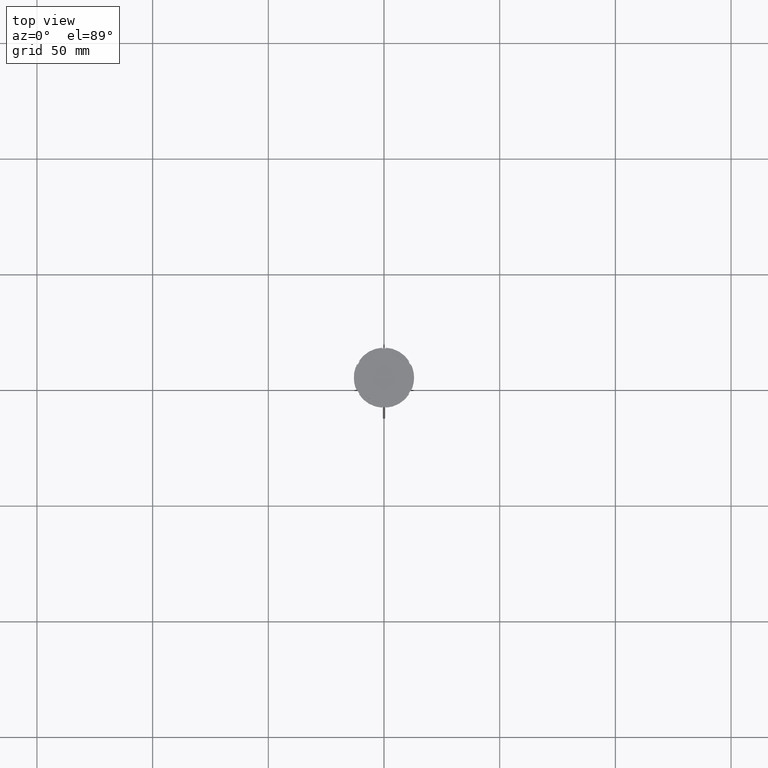
[diagram: clean part render]
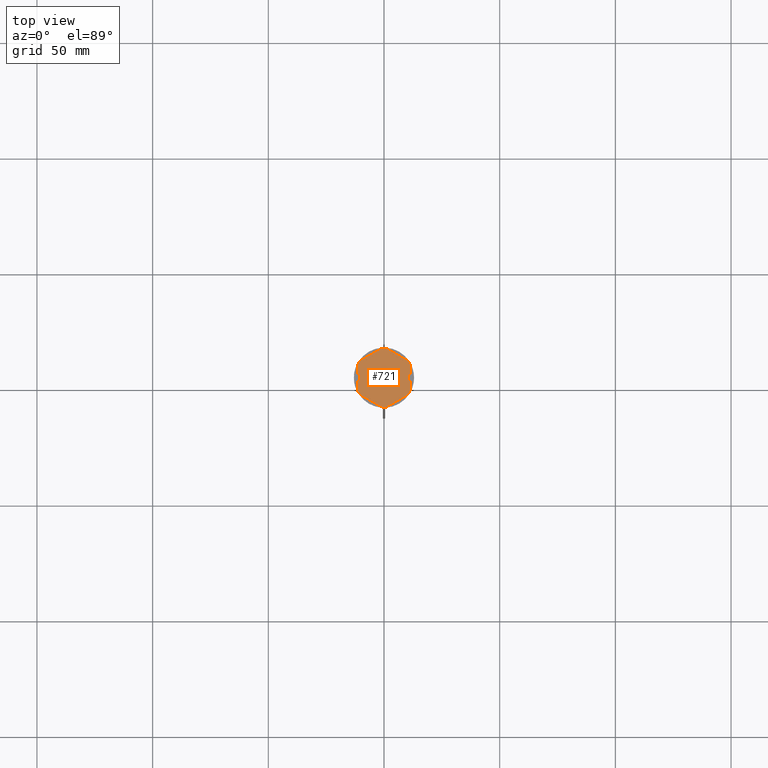
[diagram: same view with one face highlighted and labeled with its STEP entity id]
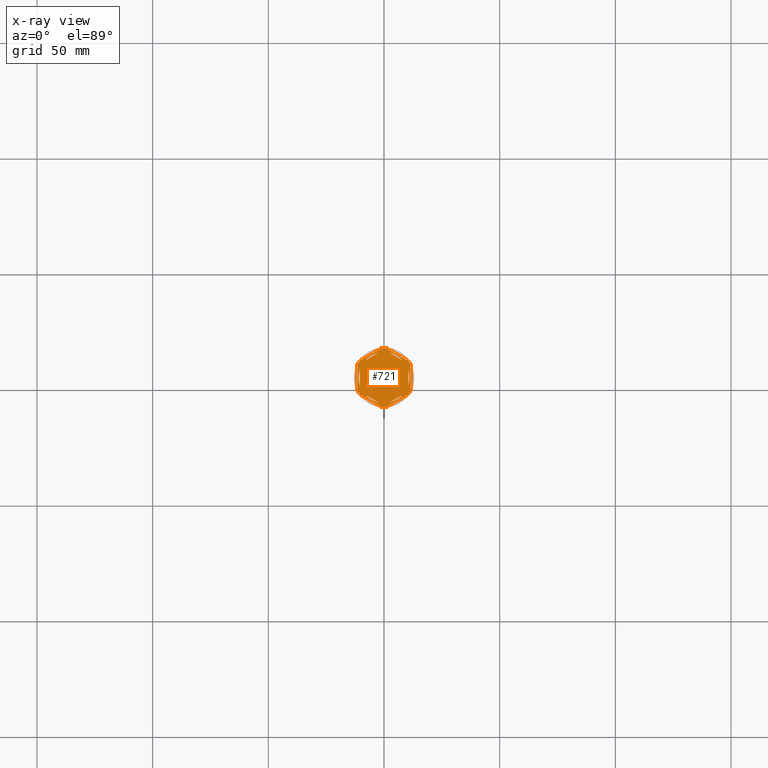
[diagram: x-ray of the same camera — body ghosted, the highlighted face saturated]
A machine part, top view. The second image highlights one B-rep face of the part: STEP entity #721.
The next image is the same camera in x-ray: the body ghosted, the highlighted face saturated — about 0% of this face is hidden behind the body in this view.
In plain terms, the highlighted planar face has unit normal (0, 0, 1).
Its self-contained STEP definition (entity closure, byte-faithful):
#7 = CIRCLE ( 'NONE', #742, 12.69999999999999929 ) ;
#27 = ORIENTED_EDGE ( 'NONE', *, *, #1596, .F. ) ;
#31 = ORIENTED_EDGE ( 'NONE', *, *, #651, .F. ) ;
#34 = CARTESIAN_POINT ( 'NONE',  ( 0.000000000000000000, 0.000000000000000000, -1.000000000000000000 ) ) ;
#47 = AXIS2_PLACEMENT_3D ( 'NONE', #2564, #635, #2760 ) ;
#56 = CARTESIAN_POINT ( 'NONE',  ( -10.41690475583121334, -7.264853426459548125, -1.000000000000000000 ) ) ;
#78 = DIRECTION ( 'NONE',  ( -0.000000000000000000, -0.000000000000000000, -1.000000000000000000 ) ) ;
#80 = ORIENTED_EDGE ( 'NONE', *, *, #1705, .F. ) ;
#104 = EDGE_CURVE ( 'NONE', #1199, #2097, #2704, .T. ) ;
#105 = LINE ( 'NONE', #2512, #202 ) ;
#110 = LINE ( 'NONE', #769, #2765 ) ;
#123 = FACE_BOUND ( 'NONE', #1287, .T. ) ;
#144 = CARTESIAN_POINT ( 'NONE',  ( -10.41690475583121689, 7.264853426459546348, -1.000000000000000000 ) ) ;
#153 = CARTESIAN_POINT ( 'NONE',  ( 0.000000000000000000, 0.000000000000000000, -1.000000000000000000 ) ) ;
#154 = CIRCLE ( 'NONE', #657, 12.69999999999999929 ) ;
#181 = DIRECTION ( 'NONE',  ( 1.000000000000000000, 0.000000000000000000, 0.000000000000000000 ) ) ;
#187 = CARTESIAN_POINT ( 'NONE',  ( -10.49999999999999822, 3.278719262151000624, -1.000000000000000888 ) ) ;
#202 = VECTOR ( 'NONE', #337, 1000.000000000000227 ) ;
#242 = DIRECTION ( 'NONE',  ( 1.000000000000000000, 0.000000000000000000, 0.000000000000000000 ) ) ;
#244 = LINE ( 'NONE', #2610, #415 ) ;
#251 = EDGE_CURVE ( 'NONE', #1046, #1315, #1626, .T. ) ;
#276 = VERTEX_POINT ( 'NONE', #594 ) ;
#287 = EDGE_LOOP ( 'NONE', ( #1898, #2158 ) ) ;
#301 = DIRECTION ( 'NONE',  ( 1.000000000000000000, 0.000000000000000000, 0.000000000000000000 ) ) ;
#309 = DIRECTION ( 'NONE',  ( -0.8660254037844384856, 0.5000000000000002220, 0.000000000000000000 ) ) ;
#310 = FACE_BOUND ( 'NONE', #1616, .T. ) ;
#337 = DIRECTION ( 'NONE',  ( 0.8660254037844387076, -0.4999999999999997780, 0.000000000000000000 ) ) ;
#349 = ORIENTED_EDGE ( 'NONE', *, *, #1049, .T. ) ;
#353 = LINE ( 'NONE', #2738, #1999 ) ;
#364 = ORIENTED_EDGE ( 'NONE', *, *, #1580, .F. ) ;
#368 = CARTESIAN_POINT ( 'NONE',  ( 0.000000000000000000, 0.000000000000000000, -1.000000000000000000 ) ) ;
#386 = VERTEX_POINT ( 'NONE', #1054 ) ;
#411 = DIRECTION ( 'NONE',  ( 0.8660254037844385966, 0.4999999999999999445, 0.000000000000000000 ) ) ;
#415 = VECTOR ( 'NONE', #685, 1000.000000000000114 ) ;
#435 = EDGE_LOOP ( 'NONE', ( #814, #1905 ) ) ;
#455 = EDGE_CURVE ( 'NONE', #2097, #1199, #1723, .T. ) ;
#512 = FACE_BOUND ( 'NONE', #2142, .T. ) ;
#534 = EDGE_CURVE ( 'NONE', #562, #386, #2537, .T. ) ;
#562 = VERTEX_POINT ( 'NONE', #1330 ) ;
#563 = VERTEX_POINT ( 'NONE', #56 ) ;
#589 = VERTEX_POINT ( 'NONE', #2415 ) ;
#594 = CARTESIAN_POINT ( 'NONE',  ( -1.083095244168783333, 12.65373086058254160, -1.000000000000000000 ) ) ;
#620 = CARTESIAN_POINT ( 'NONE',  ( 10.49999999999999467, -3.278719262151014835, -1.000000000000000888 ) ) ;
#634 = DIRECTION ( 'NONE',  ( -0.8660254037844387076, -0.4999999999999999445, 0.000000000000000000 ) ) ;
#635 = DIRECTION ( 'NONE',  ( -0.000000000000000000, -0.000000000000000000, -1.000000000000000000 ) ) ;
#639 = ORIENTED_EDGE ( 'NONE', *, *, #1148, .F. ) ;
#650 = AXIS2_PLACEMENT_3D ( 'NONE', #368, #803, #1228 ) ;
#651 = EDGE_CURVE ( 'NONE', #691, #791, #1310, .T. ) ;
#657 = AXIS2_PLACEMENT_3D ( 'NONE', #153, #1021, #2286 ) ;
#685 = DIRECTION ( 'NONE',  ( -0.8660254037844385966, -0.5000000000000001110, 0.000000000000000000 ) ) ;
#687 = EDGE_CURVE ( 'NONE', #276, #1965, #244, .T. ) ;
#691 = VERTEX_POINT ( 'NONE', #1768 ) ;
#695 = CIRCLE ( 'NONE', #965, 12.69999999999999929 ) ;
#696 = CARTESIAN_POINT ( 'NONE',  ( -1.734723475976807094E-15, 12.12435565298214080, -1.000000000000000888 ) ) ;
#699 = DIRECTION ( 'NONE',  ( 1.000000000000000000, 0.000000000000000000, 0.000000000000000000 ) ) ;
#721 = ADVANCED_FACE ( 'NONE', ( #726, #123, #2053, #310, #512, #967, #771 ), #2649, .T. ) ;
#722 = DIRECTION ( 'NONE',  ( -0.000000000000000000, -0.000000000000000000, -1.000000000000000000 ) ) ;
#725 = CARTESIAN_POINT ( 'NONE',  ( 10.41690475583121156, 7.264853426459550789, -1.000000000000000000 ) ) ;
#726 = FACE_BOUND ( 'NONE', #287, .T. ) ;
#742 = AXIS2_PLACEMENT_3D ( 'NONE', #1562, #78, #1142 ) ;
#745 = ORIENTED_EDGE ( 'NONE', *, *, #1290, .F. ) ;
#761 = CARTESIAN_POINT ( 'NONE',  ( 1.083095244168781557, 12.65373086058254160, -1.000000000000000000 ) ) ;
#769 = CARTESIAN_POINT ( 'NONE',  ( -10.49999999999999822, -6.062177826491068622, -1.000000000000000888 ) ) ;
#771 = FACE_OUTER_BOUND ( 'NONE', #1987, .T. ) ;
#787 = CARTESIAN_POINT ( 'NONE',  ( 0.000000000000000000, 0.000000000000000000, -1.000000000000000000 ) ) ;
#791 = VERTEX_POINT ( 'NONE', #1155 ) ;
#803 = DIRECTION ( 'NONE',  ( -0.000000000000000000, -0.000000000000000000, -1.000000000000000000 ) ) ;
#812 = CARTESIAN_POINT ( 'NONE',  ( 10.49999999999999289, -6.062177826491073063, -1.000000000000000888 ) ) ;
#814 = ORIENTED_EDGE ( 'NONE', *, *, #104, .F. ) ;
#815 = DIRECTION ( 'NONE',  ( -0.8660254037844388186, 0.4999999999999997224, 0.000000000000000000 ) ) ;
#842 = VECTOR ( 'NONE', #2130, 999.9999999999998863 ) ;
#858 = CARTESIAN_POINT ( 'NONE',  ( -10.49999999999999822, 6.062177826491068622, -1.000000000000000888 ) ) ;
#888 = CARTESIAN_POINT ( 'NONE',  ( 0.000000000000000000, 0.000000000000000000, -1.000000000000000000 ) ) ;
#897 = CARTESIAN_POINT ( 'NONE',  ( 2.410545827099865868, -10.73262637081210791, -1.000000000000000888 ) ) ;
#900 = LINE ( 'NONE', #1735, #842 ) ;
#903 = VERTEX_POINT ( 'NONE', #620 ) ;
#911 = AXIS2_PLACEMENT_3D ( 'NONE', #2016, #722, #2436 ) ;
#912 = CIRCLE ( 'NONE', #911, 12.69999999999999929 ) ;
#913 = DIRECTION ( 'NONE',  ( 1.000000000000000000, 0.000000000000000000, 0.000000000000000000 ) ) ;
#914 = AXIS2_PLACEMENT_3D ( 'NONE', #888, #2385, #913 ) ;
#947 = DIRECTION ( 'NONE',  ( 1.000000000000000000, 0.000000000000000000, -0.000000000000000000 ) ) ;
#956 = VECTOR ( 'NONE', #2369, 1000.000000000000000 ) ;
#965 = AXIS2_PLACEMENT_3D ( 'NONE', #2501, #1245, #1657 ) ;
#967 = FACE_BOUND ( 'NONE', #2275, .T. ) ;
#970 = VERTEX_POINT ( 'NONE', #2380 ) ;
#1021 = DIRECTION ( 'NONE',  ( -0.000000000000000000, -0.000000000000000000, -1.000000000000000000 ) ) ;
#1037 = CARTESIAN_POINT ( 'NONE',  ( 11.49999999999999822, -5.388877434122996135, -1.000000000000000000 ) ) ;
#1046 = VERTEX_POINT ( 'NONE', #2168 ) ;
#1049 = EDGE_CURVE ( 'NONE', #2367, #1787, #1099, .T. ) ;
#1054 = CARTESIAN_POINT ( 'NONE',  ( 2.410545827099861871, 10.73262637081210791, -1.000000000000000888 ) ) ;
#1055 = CIRCLE ( 'NONE', #914, 11.00000000000000000 ) ;
#1077 = EDGE_CURVE ( 'NONE', #2333, #970, #1325, .T. ) ;
#1079 = EDGE_CURVE ( 'NONE', #589, #1943, #1548, .T. ) ;
#1090 = CIRCLE ( 'NONE', #47, 12.69999999999999929 ) ;
#1099 = LINE ( 'NONE', #1528, #1450 ) ;
#1142 = DIRECTION ( 'NONE',  ( 1.000000000000000000, 0.000000000000000000, 0.000000000000000000 ) ) ;
#1145 = CARTESIAN_POINT ( 'NONE',  ( 0.000000000000000000, 0.000000000000000000, -1.000000000000000000 ) ) ;
#1148 = EDGE_CURVE ( 'NONE', #563, #1315, #912, .T. ) ;
#1155 = CARTESIAN_POINT ( 'NONE',  ( -2.410545827099876082, -10.73262637081210435, -1.000000000000000888 ) ) ;
#1184 = DIRECTION ( 'NONE',  ( 0.000000000000000000, 0.000000000000000000, 1.000000000000000000 ) ) ;
#1199 = VERTEX_POINT ( 'NONE', #897 ) ;
#1218 = EDGE_CURVE ( 'NONE', #1434, #1307, #2767, .T. ) ;
#1221 = AXIS2_PLACEMENT_3D ( 'NONE', #34, #2620, #699 ) ;
#1227 = VECTOR ( 'NONE', #411, 1000.000000000000114 ) ;
#1228 = DIRECTION ( 'NONE',  ( 1.000000000000000000, 0.000000000000000000, 0.000000000000000000 ) ) ;
#1229 = CARTESIAN_POINT ( 'NONE',  ( -8.089454172900135021, 7.453907108661106840, -1.000000000000000888 ) ) ;
#1234 = ORIENTED_EDGE ( 'NONE', *, *, #2371, .F. ) ;
#1245 = DIRECTION ( 'NONE',  ( -0.000000000000000000, -0.000000000000000000, -1.000000000000000000 ) ) ;
#1269 = CARTESIAN_POINT ( 'NONE',  ( 5.612359739892467248E-18, -13.27905619136138959, -1.000000000000000000 ) ) ;
#1279 = DIRECTION ( 'NONE',  ( -1.430775808321104180E-16, -1.000000000000000000, 0.000000000000000000 ) ) ;
#1287 = EDGE_LOOP ( 'NONE', ( #1234, #27 ) ) ;
#1290 = EDGE_CURVE ( 'NONE', #2378, #589, #1055, .T. ) ;
#1291 = EDGE_CURVE ( 'NONE', #970, #2333, #2491, .T. ) ;
#1301 = CARTESIAN_POINT ( 'NONE',  ( 0.000000000000000000, 0.000000000000000000, -1.000000000000000000 ) ) ;
#1307 = VERTEX_POINT ( 'NONE', #1331 ) ;
#1309 = DIRECTION ( 'NONE',  ( 1.306360520641008153E-16, 1.000000000000000000, 0.000000000000000000 ) ) ;
#1310 = CIRCLE ( 'NONE', #1761, 11.00000000000000000 ) ;
#1315 = VERTEX_POINT ( 'NONE', #2611 ) ;
#1325 = LINE ( 'NONE', #696, #956 ) ;
#1330 = CARTESIAN_POINT ( 'NONE',  ( 8.089454172900138573, 7.453907108661105063, -1.000000000000000888 ) ) ;
#1331 = CARTESIAN_POINT ( 'NONE',  ( 10.41690475583121867, -7.264853426459537467, -1.000000000000000000 ) ) ;
#1361 = AXIS2_PLACEMENT_3D ( 'NONE', #1301, #2174, #242 ) ;
#1387 = CARTESIAN_POINT ( 'NONE',  ( 11.49999999999999822, 5.388877434122992582, -1.000000000000000000 ) ) ;
#1434 = VERTEX_POINT ( 'NONE', #2239 ) ;
#1450 = VECTOR ( 'NONE', #1309, 1000.000000000000000 ) ;
#1454 = DIRECTION ( 'NONE',  ( 1.000000000000000000, 0.000000000000000000, 0.000000000000000000 ) ) ;
#1455 = ORIENTED_EDGE ( 'NONE', *, *, #687, .T. ) ;
#1528 = CARTESIAN_POINT ( 'NONE',  ( 11.49999999999999822, -6.639528095680694797, -1.000000000000000000 ) ) ;
#1537 = DIRECTION ( 'NONE',  ( 1.000000000000000000, 0.000000000000000000, 0.000000000000000000 ) ) ;
#1548 = LINE ( 'NONE', #858, #2538 ) ;
#1562 = CARTESIAN_POINT ( 'NONE',  ( 0.000000000000000000, 0.000000000000000000, -1.000000000000000000 ) ) ;
#1580 = EDGE_CURVE ( 'NONE', #2367, #1307, #1090, .T. ) ;
#1596 = EDGE_CURVE ( 'NONE', #1713, #903, #2554, .T. ) ;
#1616 = EDGE_LOOP ( 'NONE', ( #31, #2581 ) ) ;
#1626 = LINE ( 'NONE', #1678, #2534 ) ;
#1657 = DIRECTION ( 'NONE',  ( 1.000000000000000000, 1.243449787580175325E-14, 0.000000000000000000 ) ) ;
#1678 = CARTESIAN_POINT ( 'NONE',  ( -11.50000000000000000, 6.639528095680691244, -1.000000000000000000 ) ) ;
#1705 = EDGE_CURVE ( 'NONE', #1943, #2378, #2041, .T. ) ;
#1710 = DIRECTION ( 'NONE',  ( 0.000000000000000000, 1.000000000000000000, 0.000000000000000000 ) ) ;
#1713 = VERTEX_POINT ( 'NONE', #2364 ) ;
#1723 = LINE ( 'NONE', #1901, #2312 ) ;
#1735 = CARTESIAN_POINT ( 'NONE',  ( 10.49999999999999467, 6.062177826491072175, -1.000000000000000888 ) ) ;
#1740 = CARTESIAN_POINT ( 'NONE',  ( 0.000000000000000000, 0.000000000000000000, -1.000000000000000000 ) ) ;
#1754 = AXIS2_PLACEMENT_3D ( 'NONE', #1145, #2444, #301 ) ;
#1761 = AXIS2_PLACEMENT_3D ( 'NONE', #2221, #2203, #1537 ) ;
#1768 = CARTESIAN_POINT ( 'NONE',  ( -8.089454172900133244, -7.453907108661111280, -1.000000000000000888 ) ) ;
#1778 = ORIENTED_EDGE ( 'NONE', *, *, #2086, .F. ) ;
#1787 = VERTEX_POINT ( 'NONE', #1387 ) ;
#1806 = CARTESIAN_POINT ( 'NONE',  ( 0.000000000000000000, 0.000000000000000000, -1.000000000000000000 ) ) ;
#1829 = VERTEX_POINT ( 'NONE', #761 ) ;
#1865 = CIRCLE ( 'NONE', #650, 12.69999999999999929 ) ;
#1894 = ORIENTED_EDGE ( 'NONE', *, *, #2736, .F. ) ;
#1898 = ORIENTED_EDGE ( 'NONE', *, *, #534, .F. ) ;
#1901 = CARTESIAN_POINT ( 'NONE',  ( -2.602085213965210642E-15, -12.12435565298214080, -1.000000000000000888 ) ) ;
#1905 = ORIENTED_EDGE ( 'NONE', *, *, #455, .F. ) ;
#1913 = VECTOR ( 'NONE', #1279, 1000.000000000000000 ) ;
#1943 = VERTEX_POINT ( 'NONE', #187 ) ;
#1965 = VERTEX_POINT ( 'NONE', #144 ) ;
#1987 = EDGE_LOOP ( 'NONE', ( #349, #1894, #2181, #1778, #1455, #2591, #1992, #639, #2432, #2680, #2230, #364 ) ) ;
#1992 = ORIENTED_EDGE ( 'NONE', *, *, #251, .T. ) ;
#1999 = VECTOR ( 'NONE', #815, 1000.000000000000000 ) ;
#2016 = CARTESIAN_POINT ( 'NONE',  ( 0.000000000000000000, 0.000000000000000000, -1.000000000000000000 ) ) ;
#2028 = VERTEX_POINT ( 'NONE', #2135 ) ;
#2039 = AXIS2_PLACEMENT_3D ( 'NONE', #1740, #2600, #181 ) ;
#2041 = CIRCLE ( 'NONE', #1361, 11.00000000000000000 ) ;
#2053 = FACE_BOUND ( 'NONE', #435, .T. ) ;
#2066 = EDGE_CURVE ( 'NONE', #1434, #2028, #1865, .T. ) ;
#2067 = ORIENTED_EDGE ( 'NONE', *, *, #1079, .F. ) ;
#2086 = EDGE_CURVE ( 'NONE', #276, #1829, #695, .T. ) ;
#2093 = CIRCLE ( 'NONE', #2586, 11.00000000000000000 ) ;
#2097 = VERTEX_POINT ( 'NONE', #2288 ) ;
#2106 = CARTESIAN_POINT ( 'NONE',  ( -11.00000000000000000, 0.000000000000000000, -1.000000000000000000 ) ) ;
#2130 = DIRECTION ( 'NONE',  ( 0.8660254037844387076, -0.4999999999999999445, 0.000000000000000000 ) ) ;
#2135 = CARTESIAN_POINT ( 'NONE',  ( -1.083095244168779780, -12.65373086058253982, -1.000000000000000000 ) ) ;
#2142 = EDGE_LOOP ( 'NONE', ( #80, #2067, #745 ) ) ;
#2158 = ORIENTED_EDGE ( 'NONE', *, *, #2553, .F. ) ;
#2168 = CARTESIAN_POINT ( 'NONE',  ( -11.50000000000000000, 5.388877434122992582, -1.000000000000000000 ) ) ;
#2174 = DIRECTION ( 'NONE',  ( 0.000000000000000000, 0.000000000000000000, 1.000000000000000000 ) ) ;
#2180 = EDGE_CURVE ( 'NONE', #2200, #1829, #353, .T. ) ;
#2181 = ORIENTED_EDGE ( 'NONE', *, *, #2180, .T. ) ;
#2195 = EDGE_CURVE ( 'NONE', #791, #691, #110, .T. ) ;
#2200 = VERTEX_POINT ( 'NONE', #725 ) ;
#2203 = DIRECTION ( 'NONE',  ( 0.000000000000000000, 0.000000000000000000, 1.000000000000000000 ) ) ;
#2208 = AXIS2_PLACEMENT_3D ( 'NONE', #1806, #1184, #947 ) ;
#2221 = CARTESIAN_POINT ( 'NONE',  ( 0.000000000000000000, 0.000000000000000000, -1.000000000000000000 ) ) ;
#2230 = ORIENTED_EDGE ( 'NONE', *, *, #1218, .T. ) ;
#2239 = CARTESIAN_POINT ( 'NONE',  ( 1.083095244168774673, -12.65373086058253982, -1.000000000000000000 ) ) ;
#2275 = EDGE_LOOP ( 'NONE', ( #2631, #2690 ) ) ;
#2286 = DIRECTION ( 'NONE',  ( 1.000000000000000000, -1.776356839400250465E-14, 0.000000000000000000 ) ) ;
#2288 = CARTESIAN_POINT ( 'NONE',  ( 8.089454172900135021, -7.453907108661109504, -1.000000000000000888 ) ) ;
#2312 = VECTOR ( 'NONE', #634, 999.9999999999998863 ) ;
#2313 = EDGE_CURVE ( 'NONE', #1046, #1965, #7, .T. ) ;
#2333 = VERTEX_POINT ( 'NONE', #1229 ) ;
#2364 = CARTESIAN_POINT ( 'NONE',  ( 10.49999999999999467, 3.278719262151012170, -1.000000000000000888 ) ) ;
#2367 = VERTEX_POINT ( 'NONE', #1037 ) ;
#2369 = DIRECTION ( 'NONE',  ( 0.8660254037844385966, 0.5000000000000001110, -0.000000000000000000 ) ) ;
#2371 = EDGE_CURVE ( 'NONE', #903, #1713, #2093, .T. ) ;
#2378 = VERTEX_POINT ( 'NONE', #2106 ) ;
#2380 = CARTESIAN_POINT ( 'NONE',  ( -2.410545827099867200, 10.73262637081210613, -1.000000000000000888 ) ) ;
#2385 = DIRECTION ( 'NONE',  ( 0.000000000000000000, 0.000000000000000000, 1.000000000000000000 ) ) ;
#2415 = CARTESIAN_POINT ( 'NONE',  ( -10.49999999999999822, -3.278719262151000624, -1.000000000000000888 ) ) ;
#2432 = ORIENTED_EDGE ( 'NONE', *, *, #2719, .T. ) ;
#2436 = DIRECTION ( 'NONE',  ( 1.000000000000000000, 7.105427357601001859E-15, 0.000000000000000000 ) ) ;
#2444 = DIRECTION ( 'NONE',  ( 0.000000000000000000, 0.000000000000000000, 1.000000000000000000 ) ) ;
#2491 = CIRCLE ( 'NONE', #2039, 11.00000000000000000 ) ;
#2501 = CARTESIAN_POINT ( 'NONE',  ( 0.000000000000000000, 0.000000000000000000, -1.000000000000000000 ) ) ;
#2512 = CARTESIAN_POINT ( 'NONE',  ( -11.50000000000000000, -6.639528095680696573, -1.000000000000000000 ) ) ;
#2524 = DIRECTION ( 'NONE',  ( 0.000000000000000000, -1.000000000000000000, 0.000000000000000000 ) ) ;
#2534 = VECTOR ( 'NONE', #2524, 1000.000000000000000 ) ;
#2537 = CIRCLE ( 'NONE', #1221, 11.00000000000000000 ) ;
#2538 = VECTOR ( 'NONE', #1710, 1000.000000000000000 ) ;
#2553 = EDGE_CURVE ( 'NONE', #386, #562, #900, .T. ) ;
#2554 = LINE ( 'NONE', #812, #1913 ) ;
#2564 = CARTESIAN_POINT ( 'NONE',  ( 0.000000000000000000, 0.000000000000000000, -1.000000000000000000 ) ) ;
#2581 = ORIENTED_EDGE ( 'NONE', *, *, #2195, .F. ) ;
#2586 = AXIS2_PLACEMENT_3D ( 'NONE', #787, #2768, #1454 ) ;
#2591 = ORIENTED_EDGE ( 'NONE', *, *, #2313, .F. ) ;
#2600 = DIRECTION ( 'NONE',  ( 0.000000000000000000, 0.000000000000000000, 1.000000000000000000 ) ) ;
#2610 = CARTESIAN_POINT ( 'NONE',  ( 0.000000000000000000, 13.27905619136138959, -1.000000000000000000 ) ) ;
#2611 = CARTESIAN_POINT ( 'NONE',  ( -11.50000000000000000, -5.388877434122992582, -1.000000000000000000 ) ) ;
#2620 = DIRECTION ( 'NONE',  ( 0.000000000000000000, 0.000000000000000000, 1.000000000000000000 ) ) ;
#2631 = ORIENTED_EDGE ( 'NONE', *, *, #1291, .F. ) ;
#2649 = PLANE ( 'NONE',  #2208 ) ;
#2680 = ORIENTED_EDGE ( 'NONE', *, *, #2066, .F. ) ;
#2690 = ORIENTED_EDGE ( 'NONE', *, *, #1077, .F. ) ;
#2704 = CIRCLE ( 'NONE', #1754, 11.00000000000000000 ) ;
#2719 = EDGE_CURVE ( 'NONE', #563, #2028, #105, .T. ) ;
#2736 = EDGE_CURVE ( 'NONE', #2200, #1787, #154, .T. ) ;
#2738 = CARTESIAN_POINT ( 'NONE',  ( 11.50000000000000000, 6.639528095680698350, -1.000000000000000000 ) ) ;
#2760 = DIRECTION ( 'NONE',  ( 1.000000000000000000, 0.000000000000000000, 0.000000000000000000 ) ) ;
#2765 = VECTOR ( 'NONE', #309, 1000.000000000000000 ) ;
#2767 = LINE ( 'NONE', #1269, #1227 ) ;
#2768 = DIRECTION ( 'NONE',  ( 0.000000000000000000, 0.000000000000000000, 1.000000000000000000 ) ) ;